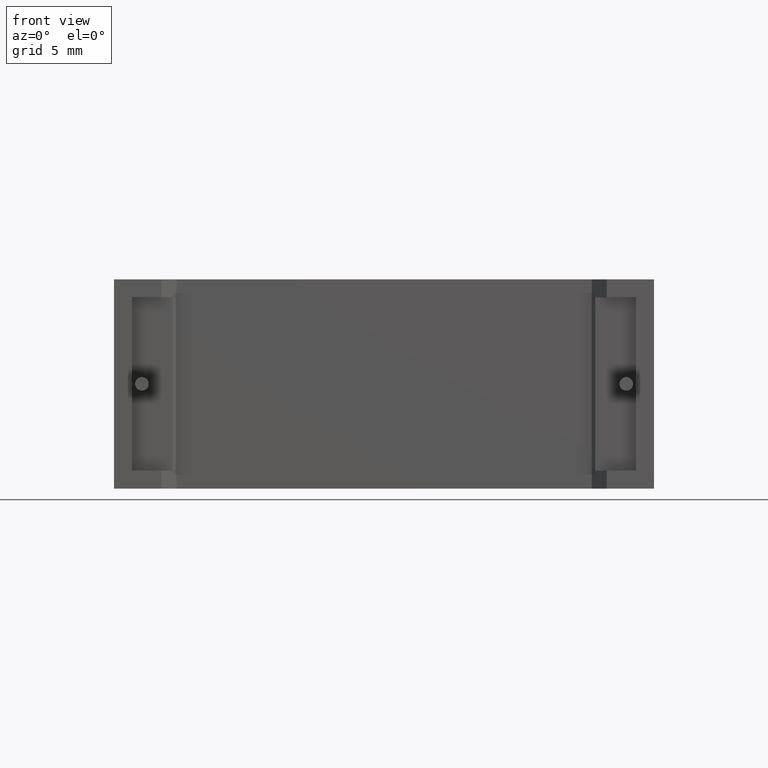
[diagram: clean part render]
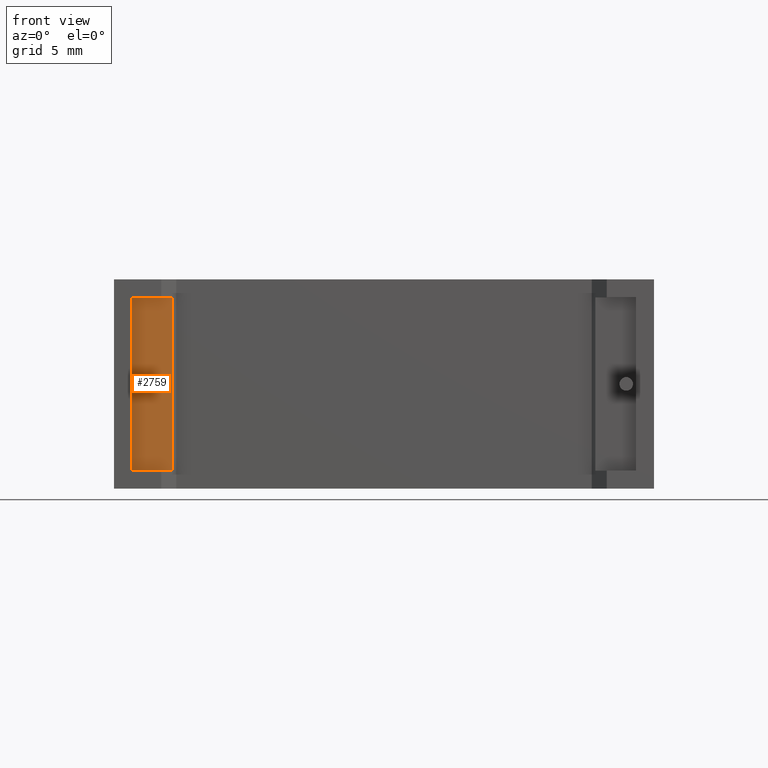
[diagram: same view with one face highlighted and labeled with its STEP entity id]
A machine part, front view. The second image highlights one B-rep face of the part: STEP entity #2759.
In plain terms, the highlighted planar face has unit normal (0, -1, 0).
Its self-contained STEP definition (entity closure, byte-faithful):
#40 = VECTOR ( 'NONE', #1574, 1000.000000000000000 ) ;
#64 = CARTESIAN_POINT ( 'NONE',  ( 0.000000000000000000, 0.7500000000000000000, 0.000000000000000000 ) ) ;
#70 = ORIENTED_EDGE ( 'NONE', *, *, #1038, .F. ) ;
#85 = VECTOR ( 'NONE', #828, 1000.000000000000000 ) ;
#164 = DIRECTION ( 'NONE',  ( 0.000000000000000000, 0.000000000000000000, -1.000000000000000000 ) ) ;
#258 = CARTESIAN_POINT ( 'NONE',  ( 1.393333193999999997, 0.7500000000000000000, 1.393333193999999997 ) ) ;
#378 = VERTEX_POINT ( 'NONE', #2142 ) ;
#415 = DIRECTION ( 'NONE',  ( 0.000000000000000000, 0.000000000000000000, -1.000000000000000000 ) ) ;
#419 = CARTESIAN_POINT ( 'NONE',  ( 40.40666680599999694, 0.7500000000000000000, 14.80666680599999907 ) ) ;
#470 = DIRECTION ( 'NONE',  ( -1.000000000000000000, 0.000000000000000000, -1.333946614172362272E-16 ) ) ;
#484 = DIRECTION ( 'NONE',  ( 0.000000000000000000, 0.000000000000000000, -1.000000000000000000 ) ) ;
#631 = CARTESIAN_POINT ( 'NONE',  ( 4.532836203819381460, 0.7500000000000000000, 0.000000000000000000 ) ) ;
#659 = CARTESIAN_POINT ( 'NONE',  ( 1.393333194000000219, 0.7500000000000000000, 14.80666680599999374 ) ) ;
#667 = VERTEX_POINT ( 'NONE', #2683 ) ;
#729 = CIRCLE ( 'NONE', #1667, 0.5250000000000002442 ) ;
#748 = DIRECTION ( 'NONE',  ( 0.000000000000000000, -1.000000000000000000, 0.000000000000000000 ) ) ;
#828 = DIRECTION ( 'NONE',  ( 1.000000000000000000, 0.000000000000000000, 0.000000000000000000 ) ) ;
#941 = DIRECTION ( 'NONE',  ( 0.000000000000000000, -1.000000000000000000, 0.000000000000000000 ) ) ;
#949 = ORIENTED_EDGE ( 'NONE', *, *, #1984, .T. ) ;
#1023 = FACE_OUTER_BOUND ( 'NONE', #1426, .T. ) ;
#1038 = EDGE_CURVE ( 'NONE', #1460, #2909, #1565, .T. ) ;
#1120 = AXIS2_PLACEMENT_3D ( 'NONE', #2714, #2266, #164 ) ;
#1250 = ORIENTED_EDGE ( 'NONE', *, *, #2420, .F. ) ;
#1271 = FACE_BOUND ( 'NONE', #1536, .T. ) ;
#1426 = EDGE_LOOP ( 'NONE', ( #1803, #2797, #1689, #949 ) ) ;
#1460 = VERTEX_POINT ( 'NONE', #2360 ) ;
#1487 = VERTEX_POINT ( 'NONE', #258 ) ;
#1536 = EDGE_LOOP ( 'NONE', ( #70, #1250 ) ) ;
#1565 = CIRCLE ( 'NONE', #1120, 0.5250000000000002442 ) ;
#1574 = DIRECTION ( 'NONE',  ( -1.616603603321314208E-17, 0.000000000000000000, -1.000000000000000000 ) ) ;
#1647 = CARTESIAN_POINT ( 'NONE',  ( 2.149999999999999023, 0.7500000000000000000, 8.099999999999999645 ) ) ;
#1667 = AXIS2_PLACEMENT_3D ( 'NONE', #1647, #941, #484 ) ;
#1688 = DIRECTION ( 'NONE',  ( 0.000000000000000000, 0.000000000000000000, -1.000000000000000000 ) ) ;
#1689 = ORIENTED_EDGE ( 'NONE', *, *, #2608, .T. ) ;
#1771 = LINE ( 'NONE', #1999, #85 ) ;
#1801 = LINE ( 'NONE', #659, #40 ) ;
#1803 = ORIENTED_EDGE ( 'NONE', *, *, #2622, .F. ) ;
#1984 = EDGE_CURVE ( 'NONE', #1487, #667, #1771, .T. ) ;
#1999 = CARTESIAN_POINT ( 'NONE',  ( 1.393333193999999997, 0.7500000000000000000, 1.393333193999999997 ) ) ;
#2113 = CARTESIAN_POINT ( 'NONE',  ( 1.393333194000000219, 0.7500000000000000000, 14.80666680599999374 ) ) ;
#2142 = CARTESIAN_POINT ( 'NONE',  ( 4.532836203819381460, 0.7500000000000000000, 14.80666680599999907 ) ) ;
#2250 = EDGE_CURVE ( 'NONE', #378, #2411, #2490, .T. ) ;
#2266 = DIRECTION ( 'NONE',  ( 0.000000000000000000, -1.000000000000000000, 0.000000000000000000 ) ) ;
#2360 = CARTESIAN_POINT ( 'NONE',  ( 2.149999999999999023, 0.7500000000000000000, 8.624999999999998224 ) ) ;
#2411 = VERTEX_POINT ( 'NONE', #2113 ) ;
#2420 = EDGE_CURVE ( 'NONE', #2909, #1460, #729, .T. ) ;
#2490 = LINE ( 'NONE', #419, #2688 ) ;
#2551 = CARTESIAN_POINT ( 'NONE',  ( 2.149999999999999023, 0.7500000000000000000, 7.574999999999999289 ) ) ;
#2608 = EDGE_CURVE ( 'NONE', #2411, #1487, #1801, .T. ) ;
#2622 = EDGE_CURVE ( 'NONE', #378, #667, #2991, .T. ) ;
#2683 = CARTESIAN_POINT ( 'NONE',  ( 4.532836203819381460, 0.7500000000000000000, 1.393333193999999997 ) ) ;
#2688 = VECTOR ( 'NONE', #470, 1000.000000000000000 ) ;
#2714 = CARTESIAN_POINT ( 'NONE',  ( 2.149999999999999023, 0.7500000000000000000, 8.099999999999999645 ) ) ;
#2744 = VECTOR ( 'NONE', #415, 1000.000000000000000 ) ;
#2759 = ADVANCED_FACE ( 'NONE', ( #1023, #1271 ), #2857, .T. ) ;
#2797 = ORIENTED_EDGE ( 'NONE', *, *, #2250, .T. ) ;
#2857 = PLANE ( 'NONE',  #2901 ) ;
#2901 = AXIS2_PLACEMENT_3D ( 'NONE', #64, #748, #1688 ) ;
#2909 = VERTEX_POINT ( 'NONE', #2551 ) ;
#2991 = LINE ( 'NONE', #631, #2744 ) ;